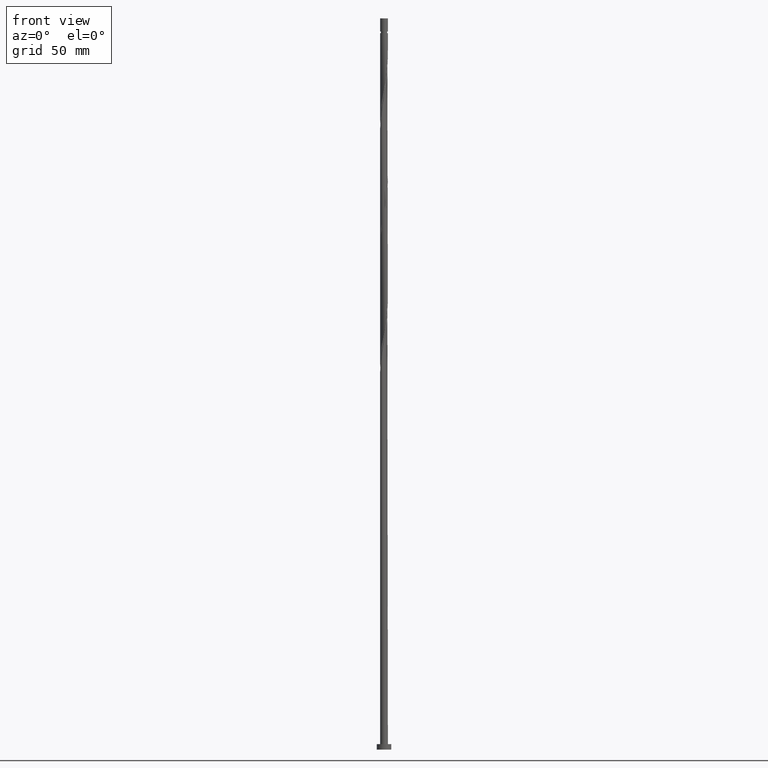
[diagram: clean part render]
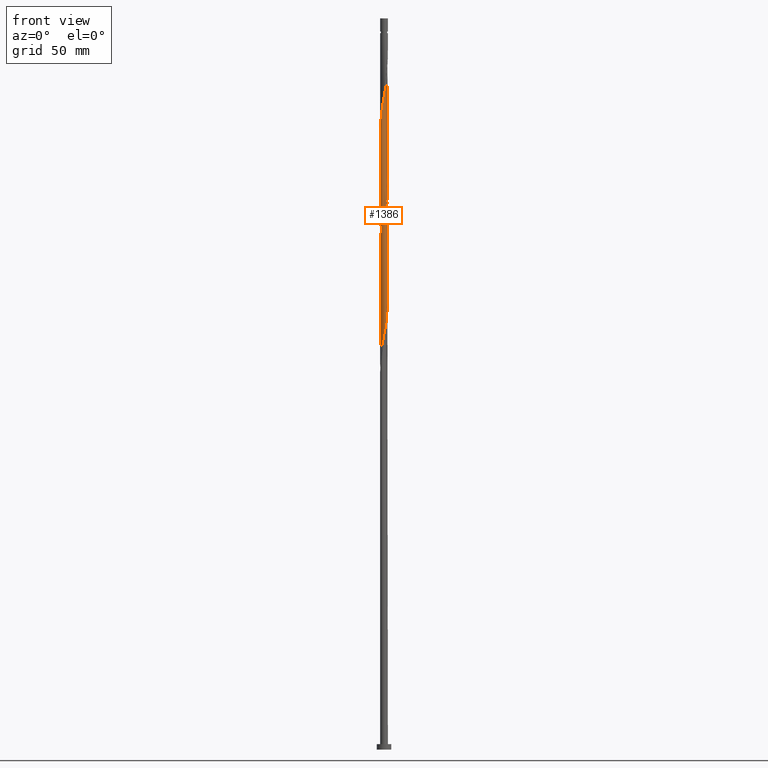
[diagram: same view with one face highlighted and labeled with its STEP entity id]
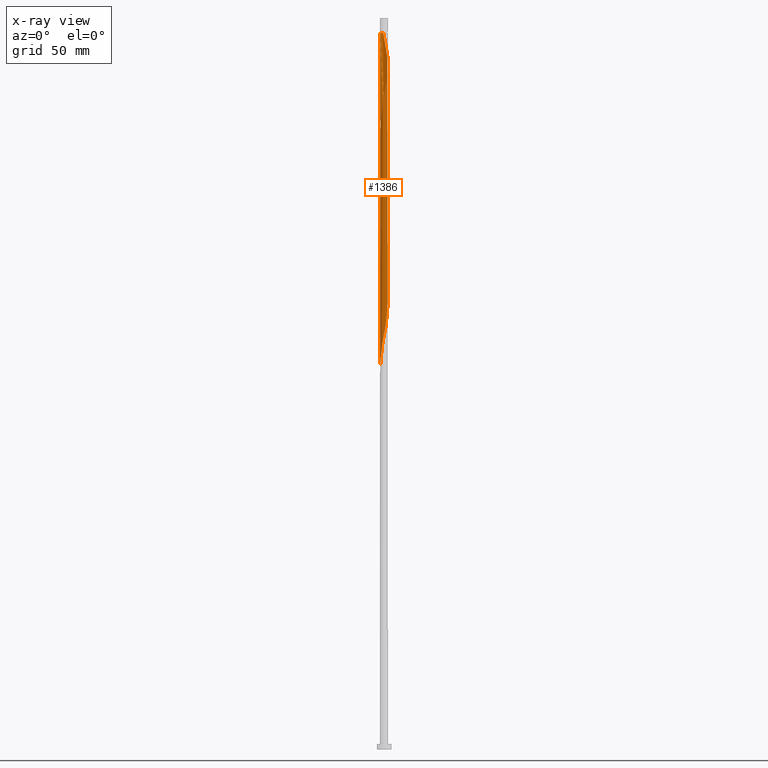
[diagram: x-ray of the same camera — body ghosted, the highlighted face saturated]
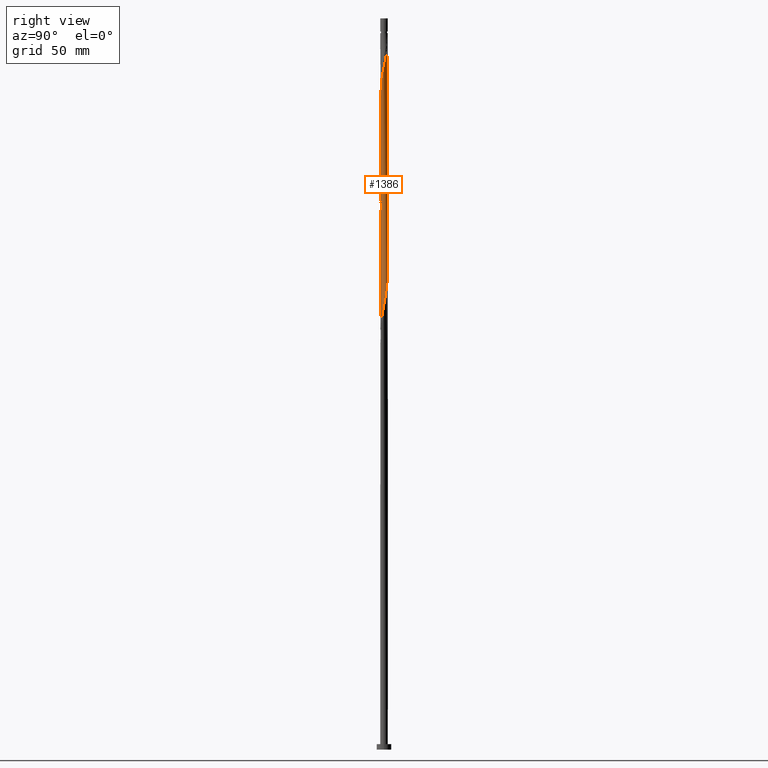
[diagram: same view with one face highlighted and labeled with its STEP entity id]
A machine part, front view. The second image highlights one B-rep face of the part: STEP entity #1386.
The next image is the same camera in x-ray: the body ghosted, the highlighted face saturated — about 0% of this face is hidden behind the body in this view.
A second angle (right view) of the same face is appended — the face is thin or edge-on in the first view.
In plain terms, the highlighted cylindrical surface (bore or boss wall) has radius 2.1 mm, axis along (-0, -0, -1).
Its self-contained STEP definition (entity closure, byte-faithful):
#7 = CARTESIAN_POINT ( 'NONE',  ( -1.427142655681891581, 1.556271400022306572, 268.6604106281170630 ) ) ;
#15 = CARTESIAN_POINT ( 'NONE',  ( 0.2015902074080211659, -2.101922505343942760, 357.5492995170059203 ) ) ;
#18 = CARTESIAN_POINT ( 'NONE',  ( 1.828137739088105951, -1.033398474414312540, 238.6604106281171767 ) ) ;
#26 = LINE ( 'NONE', #1189, #1511 ) ;
#41 = CARTESIAN_POINT ( 'NONE',  ( -2.100000000000002753, 4.932977088819269948E-16, 339.8683007179288325 ) ) ;
#62 = CARTESIAN_POINT ( 'NONE',  ( 2.003044167403931208, 0.6307250299687703343, 376.4381884058950050 ) ) ;
#63 = EDGE_CURVE ( 'NONE', #1246, #1501, #26, .T. ) ;
#64 = CARTESIAN_POINT ( 'NONE',  ( 1.218829837953687489, 1.710103454798506339, 320.8826328503393484 ) ) ;
#79 = ORIENTED_EDGE ( 'NONE', *, *, #200, .F. ) ;
#81 = CARTESIAN_POINT ( 'NONE',  ( 0.6707670855462439796, 2.002195881311807035, 386.4381884058949481 ) ) ;
#96 = CARTESIAN_POINT ( 'NONE',  ( 2.061341895443437711, 0.4578060946337516590, 313.1048550725616337 ) ) ;
#109 = CARTESIAN_POINT ( 'NONE',  ( -0.8366449809367226820, -1.926142563745838254, 289.7715217392283762 ) ) ;
#120 = CARTESIAN_POINT ( 'NONE',  ( 1.719523182710071429, -1.225543493441491494, 237.5492995170060055 ) ) ;
#130 = CARTESIAN_POINT ( 'NONE',  ( 1.398568953795475300, 1.581999276761396400, 253.1048550725615769 ) ) ;
#138 = FACE_OUTER_BOUND ( 'NONE', #1871, .T. ) ;
#141 = CARTESIAN_POINT ( 'NONE',  ( 1.921113390118095010, 0.8763790119024481573, 248.6604106281171482 ) ) ;
#150 = DIRECTION ( 'NONE',  ( -1.000000000000000000, 0.000000000000000000, 0.000000000000000000 ) ) ;
#152 = CARTESIAN_POINT ( 'NONE',  ( 0.2015902074080217488, 2.101922505343939207, 259.7715217392283193 ) ) ;
#164 = CARTESIAN_POINT ( 'NONE',  ( -2.069336039341715949, 0.4201966045504072489, 275.3270772947838054 ) ) ;
#186 = DIRECTION ( 'NONE',  ( -0.000000000000000000, -0.000000000000000000, -1.000000000000000000 ) ) ;
#196 = CARTESIAN_POINT ( 'NONE',  ( -1.828137739088109504, -1.033398474414313650, 345.3270772947838623 ) ) ;
#200 = EDGE_CURVE ( 'NONE', #1219, #1277, #1402, .T. ) ;
#204 = CARTESIAN_POINT ( 'NONE',  ( -0.2398292843463734614, -2.097903416405071386, 355.3270772947836917 ) ) ;
#211 = CARTESIAN_POINT ( 'NONE',  ( 1.573332919195986168, 1.390907446731899810, 380.8826328503394052 ) ) ;
#213 = CARTESIAN_POINT ( 'NONE',  ( -1.936752295466138918, 0.8412534553871342524, 339.7715217392282057 ) ) ;
#221 = CARTESIAN_POINT ( 'NONE',  ( 1.809018200618933481, -1.066514486460194533, 367.5492995170059771 ) ) ;
#230 = CARTESIAN_POINT ( 'NONE',  ( 2.086410881982744936, 0.2385154744329703869, 311.9937439614505479 ) ) ;
#232 = CARTESIAN_POINT ( 'NONE',  ( 2.003044167403927212, -0.6307250299687723327, 307.5492995170061477 ) ) ;
#236 = CARTESIAN_POINT ( 'NONE',  ( 0.4552981849463097475, 2.050049648858438989, 387.5492995170060340 ) ) ;
#245 = ORIENTED_EDGE ( 'NONE', *, *, #1692, .T. ) ;
#249 = CARTESIAN_POINT ( 'NONE',  ( -1.072389146410154259, 1.818982778603428940, 333.1048550725615769 ) ) ;
#252 = CARTESIAN_POINT ( 'NONE',  ( -0.6341992397615467958, -2.014077494656058676, 290.8826328503394052 ) ) ;
#256 = VECTOR ( 'NONE', #186, 1000.000000000000000 ) ;
#266 = CARTESIAN_POINT ( 'NONE',  ( -1.696923011119766622, -1.256649961017934025, 217.5492995170060055 ) ) ;
#271 = CARTESIAN_POINT ( 'NONE',  ( -2.100000000000000089, 0.000000000000000000, 400.0000000000000000 ) ) ;
#276 = CARTESIAN_POINT ( 'NONE',  ( -2.003044167403927212, 0.6307250299687712225, 274.2159661836727764 ) ) ;
#285 = CARTESIAN_POINT ( 'NONE',  ( -2.090407953931884499, 0.2004858751591094557, 276.4381884058949481 ) ) ;
#295 = CARTESIAN_POINT ( 'NONE',  ( 0.6707670855462406490, -2.002195881311804371, 230.8826328503392915 ) ) ;
#304 = CARTESIAN_POINT ( 'NONE',  ( 0.4178947235847844111, 2.057999999999999385, 258.6604106281171767 ) ) ;
#311 = CARTESIAN_POINT ( 'NONE',  ( -1.249765901046026029, -1.687627089312869755, 349.7715217392283193 ) ) ;
#338 = CARTESIAN_POINT ( 'NONE',  ( -2.069336039341719058, -0.4201966045504075264, 341.9937439614504342 ) ) ;
#351 = CARTESIAN_POINT ( 'NONE',  ( 1.072389146410158034, 1.818982778603431161, 384.2159661836727196 ) ) ;
#359 = CARTESIAN_POINT ( 'NONE',  ( -1.573332919195981949, 1.390907446731898256, 336.4381884058948344 ) ) ;
#366 = CARTESIAN_POINT ( 'NONE',  ( 0.01911953846917683469, 2.099912960874507295, 389.7715217392283193 ) ) ;
#368 = CARTESIAN_POINT ( 'NONE',  ( -2.003044167403927212, 0.6307250299687712225, 340.8826328503394052 ) ) ;
#377 =( BOUNDED_CURVE ( )  B_SPLINE_CURVE ( 2, ( #1667, #1382, #390, #1250, #368, #213, #1393, #1811, #359, #1239, #503, #249, #669, #1818, #933, #1230, #1222, #529, #1099, #1829, #823, #1691, #64, #520, #1677, #512, #1524, #1263, #379, #96, #230, #793, #1070 ),
 .UNSPECIFIED., .F., .T. ) 
 B_SPLINE_CURVE_WITH_KNOTS ( ( 3, 2, 2, 2, 2, 2, 2, 2, 2, 2, 2, 2, 2, 2, 2, 2, 3 ),
 ( 0.4295286012773114614, 0.4333333333333333481, 0.4416666666666666519, 0.4500000000000000111, 0.4583333333333333148, 0.4666666666666666741, 0.4749999999999999778, 0.4833333333333333370, 0.4916666666666666408, 0.5000000000000000000, 0.5083333333333333037, 0.5166666666666667185, 0.5250000000000000222, 0.5333333333333333259, 0.5416666666666666297, 0.5500000000000000444, 0.5545286012773114059 ),
 .UNSPECIFIED. ) 
 CURVE ( )  GEOMETRIC_REPRESENTATION_ITEM ( )  RATIONAL_B_SPLINE_CURVE ( ( 0.9066196499552647836, 0.9068171577856775079, 0.9090909090909764512, 0.9041108139712246139, 0.9090909090909764512, 0.9041108139712246139, 0.9090909090909764512, 0.9041108139712246139, 0.9090909090909764512, 0.9041108139712246139, 0.9090909090909764512, 0.9041108139712246139, 0.9090909090909764512, 0.9041108139712246139, 0.9090909090909764512, 0.9041108139712246139, 0.9090909090909764512, 0.9041108139712246139, 0.9090909090909764512, 0.9041108139712246139, 0.9090909090909764512, 0.9041108139712246139, 0.9090909090909764512, 0.9041108139712246139, 0.9090909090909764512, 0.9041108139712246139, 0.9090909090909764512, 0.9041108139712246139, 0.9090909090909764512, 0.9041108139712246139, 0.9090909090909764512, 0.9063845652765236682, 0.9066196499552647836 ) ) 
 REPRESENTATION_ITEM ( '' )  );
#379 = CARTESIAN_POINT ( 'NONE',  ( 1.991227642780766915, 0.6670925532680991310, 314.2159661836727764 ) ) ;
#381 = CARTESIAN_POINT ( 'NONE',  ( 0.2398292843463720181, -2.097903416405068722, 295.3270772947837486 ) ) ;
#390 = CARTESIAN_POINT ( 'NONE',  ( -2.090407953931884499, 0.2004858751591094557, 343.1048550725615769 ) ) ;
#407 = CARTESIAN_POINT ( 'NONE',  ( -1.398568953795474856, -1.581999276761396400, 286.4381884058948344 ) ) ;
#420 = CARTESIAN_POINT ( 'NONE',  ( -0.4552981849463068054, 2.050049648858437212, 263.1048550725616337 ) ) ;
#432 = CARTESIAN_POINT ( 'NONE',  ( -1.719523182710072540, 1.225543493441490606, 270.8826328503394052 ) ) ;
#441 = EDGE_CURVE ( 'NONE', #1501, #1037, #1396, .T. ) ;
#442 = CARTESIAN_POINT ( 'NONE',  ( 0.000000000000000000, 0.000000000000000000, 400.0000000000000000 ) ) ;
#444 = CARTESIAN_POINT ( 'NONE',  ( 1.427142655681890915, -1.556271400022306572, 235.3270772947838054 ) ) ;
#452 = CARTESIAN_POINT ( 'NONE',  ( 2.090407953931884499, -0.2004858751591102606, 243.1048550725616622 ) ) ;
#460 = CARTESIAN_POINT ( 'NONE',  ( 0.8366449809367224599, -1.926142563745842473, 360.8826328503394052 ) ) ;
#461 = CARTESIAN_POINT ( 'NONE',  ( -1.398568953795474856, -1.581999276761396400, 219.7715217392282341 ) ) ;
#487 = CARTESIAN_POINT ( 'NONE',  ( -2.090407953931887608, -0.2004858751591087063, 340.8826328503394620 ) ) ;
#500 = CARTESIAN_POINT ( 'NONE',  ( 1.547745982457622294, -1.419324618889668654, 365.3270772947838054 ) ) ;
#503 = CARTESIAN_POINT ( 'NONE',  ( -1.249765901046022920, 1.687627089312867756, 334.2159661836727764 ) ) ;
#512 = CARTESIAN_POINT ( 'NONE',  ( 1.696923011119767066, 1.256649961017933137, 317.5492995170059771 ) ) ;
#514 = CARTESIAN_POINT ( 'NONE',  ( 0.8715781159781976761, -1.910589329957616656, 298.6604106281172335 ) ) ;
#518 = CARTESIAN_POINT ( 'NONE',  ( 2.090407953931888052, 0.2004858751591075683, 374.2159661836727196 ) ) ;
#520 = CARTESIAN_POINT ( 'NONE',  ( 1.398568953795475300, 1.581999276761396400, 319.7715217392283762 ) ) ;
#522 = CARTESIAN_POINT ( 'NONE',  ( 2.090407953931884499, -0.2004858751591102606, 309.7715217392283193 ) ) ;
#529 = CARTESIAN_POINT ( 'NONE',  ( 0.2015902074080217488, 2.101922505343939207, 326.4381884058948344 ) ) ;
#531 = CARTESIAN_POINT ( 'NONE',  ( 1.249765901046022920, -1.687627089312868200, 300.8826328503394620 ) ) ;
#552 = CARTESIAN_POINT ( 'NONE',  ( -1.218829837953686601, -1.710103454798507228, 287.5492995170059203 ) ) ;
#560 = DIRECTION ( 'NONE',  ( -0.000000000000000000, -0.000000000000000000, -1.000000000000000000 ) ) ;
#564 = CARTESIAN_POINT ( 'NONE',  ( 1.991227642780766915, 0.6670925532680991310, 247.5492995170060908 ) ) ;
#576 = CARTESIAN_POINT ( 'NONE',  ( -1.921113390118095010, -0.8763790119024486014, 281.9937439614504342 ) ) ;
#585 = CARTESIAN_POINT ( 'NONE',  ( -0.01911953846917524569, 2.099912960874503298, 260.8826328503394052 ) ) ;
#600 = CARTESIAN_POINT ( 'NONE',  ( 1.072389146410153593, -1.818982778603429162, 233.1048550725615769 ) ) ;
#608 = CARTESIAN_POINT ( 'NONE',  ( 0.000000000000000000, 0.000000000000000000, 391.9937439614504910 ) ) ;
#610 = CARTESIAN_POINT ( 'NONE',  ( -0.8366449809367226820, -1.926142563745838254, 223.1048550725616337 ) ) ;
#635 = VERTEX_POINT ( 'NONE', #1049 ) ;
#644 = CARTESIAN_POINT ( 'NONE',  ( -1.573332919195985280, -1.390907446731900476, 347.5492995170059771 ) ) ;
#661 = CARTESIAN_POINT ( 'NONE',  ( -2.099999999999964562, 0.000000000000000000, 391.9937439614504910 ) ) ;
#667 = CARTESIAN_POINT ( 'NONE',  ( 1.427142655681894690, 1.556271400022308349, 381.9937439614503774 ) ) ;
#669 = CARTESIAN_POINT ( 'NONE',  ( -0.8715781159781980092, 1.910589329957616878, 331.9937439614505479 ) ) ;
#684 = CARTESIAN_POINT ( 'NONE',  ( 1.427142655681890915, -1.556271400022306572, 301.9937439614504910 ) ) ;
#690 = CARTESIAN_POINT ( 'NONE',  ( -0.2015902074080199724, 2.101922505343943204, 390.8826328503392347 ) ) ;
#704 = CARTESIAN_POINT ( 'NONE',  ( 1.072389146410153593, -1.818982778603429162, 299.7715217392282625 ) ) ;
#714 = CARTESIAN_POINT ( 'NONE',  ( -1.547745982457620961, -1.419324618889665768, 218.6604106281172051 ) ) ;
#723 = CARTESIAN_POINT ( 'NONE',  ( -1.573332919195981949, 1.390907446731898256, 269.7715217392282625 ) ) ;
#730 = CARTESIAN_POINT ( 'NONE',  ( 2.003044167403927212, -0.6307250299687723327, 240.8826328503394052 ) ) ;
#738 = CYLINDRICAL_SURFACE ( 'NONE', #1160, 2.100000000000000089 ) ;
#740 = CARTESIAN_POINT ( 'NONE',  ( 0.2398292843463720181, -2.097903416405068722, 228.6604106281171482 ) ) ;
#750 = CARTESIAN_POINT ( 'NONE',  ( 1.547745982457620961, 1.419324618889665768, 251.9937439614505195 ) ) ;
#771 = LINE ( 'NONE', #882, #256 ) ;
#793 = CARTESIAN_POINT ( 'NONE',  ( 2.099999999999999645, 0.1196448486375067122, 311.3914451810231867 ) ) ;
#795 = CARTESIAN_POINT ( 'NONE',  ( -1.547745982457620961, -1.419324618889665768, 285.3270772947839760 ) ) ;
#799 = CARTESIAN_POINT ( 'NONE',  ( 1.936752295466143803, 0.8412534553871336973, 377.5492995170060340 ) ) ;
#807 = CARTESIAN_POINT ( 'NONE',  ( 0.8715781159782003407, 1.910589329957619986, 385.3270772947838054 ) ) ;
#810 = CARTESIAN_POINT ( 'NONE',  ( 1.936752295466138474, -0.8412534553871350296, 306.4381884058949481 ) ) ;
#823 = CARTESIAN_POINT ( 'NONE',  ( 0.8366449809367229040, 1.926142563745838254, 323.1048550725618043 ) ) ;
#840 = CARTESIAN_POINT ( 'NONE',  ( -2.061341895443437711, -0.4578060946337523252, 279.7715217392283193 ) ) ;
#850 = CARTESIAN_POINT ( 'NONE',  ( -1.072389146410154259, 1.818982778603428940, 266.4381884058950050 ) ) ;
#860 = CARTESIAN_POINT ( 'NONE',  ( -1.936752295466138918, 0.8412534553871342524, 273.1048550725615769 ) ) ;
#868 = CARTESIAN_POINT ( 'NONE',  ( -2.086410881982744936, -0.2385154744329706644, 278.6604106281171767 ) ) ;
#877 = CARTESIAN_POINT ( 'NONE',  ( -0.4178947235847841890, -2.057999999999999385, 225.3270772947838623 ) ) ;
#882 = CARTESIAN_POINT ( 'NONE',  ( -2.100000000000000089, 0.000000000000000000, 400.0000000000000000 ) ) ;
#887 = DIRECTION ( 'NONE',  ( -0.000000000000000000, -0.000000000000000000, -1.000000000000000000 ) ) ;
#899 = CARTESIAN_POINT ( 'NONE',  ( -2.003044167403931208, -0.6307250299687712225, 343.1048550725616337 ) ) ;
#907 = CARTESIAN_POINT ( 'NONE',  ( -0.6707670855462438686, -2.002195881311807479, 353.1048550725616906 ) ) ;
#932 = CARTESIAN_POINT ( 'NONE',  ( 1.719523182710076314, 1.225543493441491716, 379.7715217392282625 ) ) ;
#933 = CARTESIAN_POINT ( 'NONE',  ( -0.4552981849463068054, 2.050049648858437212, 329.7715217392284330 ) ) ;
#939 = CARTESIAN_POINT ( 'NONE',  ( -0.4178947235848213815, 2.058000000000551832, 391.9937439614504910 ) ) ;
#943 = CARTESIAN_POINT ( 'NONE',  ( -0.2015902074080227757, -2.101922505343939207, 293.1048550725615769 ) ) ;
#953 = VECTOR ( 'NONE', #560, 1000.000000000000000 ) ;
#954 = ORIENTED_EDGE ( 'NONE', *, *, #1748, .F. ) ;
#978 = CARTESIAN_POINT ( 'NONE',  ( -2.061341895443437711, -0.4578060946337523252, 213.1048550725616053 ) ) ;
#990 = CARTESIAN_POINT ( 'NONE',  ( -0.2398292843463723512, 2.097903416405067833, 261.9937439614504910 ) ) ;
#998 = CARTESIAN_POINT ( 'NONE',  ( 1.249765901046022920, -1.687627089312868200, 234.2159661836727480 ) ) ;
#1000 = AXIS2_PLACEMENT_3D ( 'NONE', #608, #887, #1477 ) ;
#1009 = CARTESIAN_POINT ( 'NONE',  ( 0.01911953846917470792, -2.099912960874503298, 227.5492995170060624 ) ) ;
#1031 = CARTESIAN_POINT ( 'NONE',  ( -2.100000000000000089, -0.1196448486375046028, 211.3914451810232720 ) ) ;
#1037 = VERTEX_POINT ( 'NONE', #1088 ) ;
#1041 = CARTESIAN_POINT ( 'NONE',  ( -2.086410881982744936, -0.2385154744329706644, 211.9937439614505479 ) ) ;
#1049 = CARTESIAN_POINT ( 'NONE',  ( -0.4178947235848213815, 2.058000000000551832, 391.9937439614504910 ) ) ;
#1053 = CARTESIAN_POINT ( 'NONE',  ( -0.8715781159782001186, -1.910589329957619986, 351.9937439614505479 ) ) ;
#1057 = CIRCLE ( 'NONE', #1000, 2.099999999999964562 ) ;
#1063 = CARTESIAN_POINT ( 'NONE',  ( 2.100000000000000089, 2.571758278209441957E-16, 391.9937439614504910 ) ) ;
#1070 = CARTESIAN_POINT ( 'NONE',  ( 2.100000000000000089, -7.474207710332291177E-17, 310.7858538716386647 ) ) ;
#1072 = CARTESIAN_POINT ( 'NONE',  ( -1.696923011119766622, -1.256649961017934025, 284.2159661836727764 ) ) ;
#1073 = ORIENTED_EDGE ( 'NONE', *, *, #63, .F. ) ;
#1078 = CARTESIAN_POINT ( 'NONE',  ( 1.828137739088109504, 1.033398474414313428, 378.6604106281171767 ) ) ;
#1088 = CARTESIAN_POINT ( 'NONE',  ( -2.100000000000000089, -8.296370558468843318E-16, 210.7858538716386363 ) ) ;
#1091 = CARTESIAN_POINT ( 'NONE',  ( 0.4552981849463060282, -2.050049648858437212, 296.4381884058949481 ) ) ;
#1099 = CARTESIAN_POINT ( 'NONE',  ( 0.4178947235847844111, 2.057999999999999385, 325.3270772947838623 ) ) ;
#1103 = CARTESIAN_POINT ( 'NONE',  ( 0.01911953846917470792, -2.099912960874503298, 294.2159661836726627 ) ) ;
#1126 = CARTESIAN_POINT ( 'NONE',  ( -1.921113390118095010, -0.8763790119024486014, 215.3270772947838054 ) ) ;
#1138 = CARTESIAN_POINT ( 'NONE',  ( -0.8715781159781980092, 1.910589329957616878, 265.3270772947838054 ) ) ;
#1145 = CARTESIAN_POINT ( 'NONE',  ( 1.936752295466138474, -0.8412534553871350296, 239.7715217392282625 ) ) ;
#1156 = CARTESIAN_POINT ( 'NONE',  ( 2.100000000000000089, -7.474207710332291177E-17, 310.7858538716386647 ) ) ;
#1158 = CARTESIAN_POINT ( 'NONE',  ( 2.061341895443437711, 0.4578060946337516590, 246.4381884058949481 ) ) ;
#1160 = AXIS2_PLACEMENT_3D ( 'NONE', #442, #1555, #150 ) ;
#1168 = CARTESIAN_POINT ( 'NONE',  ( 0.4178947235847839670, -2.058000000000002938, 358.6604106281171198 ) ) ;
#1169 = CARTESIAN_POINT ( 'NONE',  ( -1.039090722111898124, -1.838207632835617611, 221.9937439614504342 ) ) ;
#1189 = CARTESIAN_POINT ( 'NONE',  ( 2.100000000000000089, 2.571758278209441957E-16, 400.0000000000000000 ) ) ;
#1197 = CARTESIAN_POINT ( 'NONE',  ( -2.100000000000004086, -0.1004723985021682420, 340.3768492434929840 ) ) ;
#1203 = CARTESIAN_POINT ( 'NONE',  ( -1.072389146410157146, -1.818982778603431605, 350.8826328503393484 ) ) ;
#1219 = VERTEX_POINT ( 'NONE', #661 ) ;
#1222 = CARTESIAN_POINT ( 'NONE',  ( -0.01911953846917524569, 2.099912960874503298, 327.5492995170061477 ) ) ;
#1224 = CARTESIAN_POINT ( 'NONE',  ( 2.100000000000000089, -7.474207710332291177E-17, 310.7858538716386647 ) ) ;
#1230 = CARTESIAN_POINT ( 'NONE',  ( -0.2398292843463723512, 2.097903416405067833, 328.6604106281171767 ) ) ;
#1236 = CARTESIAN_POINT ( 'NONE',  ( 1.991227642780769136, -0.6670925532681033499, 369.7715217392282057 ) ) ;
#1239 = CARTESIAN_POINT ( 'NONE',  ( -1.427142655681891581, 1.556271400022306572, 335.3270772947838054 ) ) ;
#1241 = CARTESIAN_POINT ( 'NONE',  ( 0.6707670855462406490, -2.002195881311804371, 297.5492995170060340 ) ) ;
#1244 = EDGE_CURVE ( 'NONE', #1277, #1501, #377, .T. ) ;
#1246 = VERTEX_POINT ( 'NONE', #1063 ) ;
#1248 = CARTESIAN_POINT ( 'NONE',  ( 2.069336039341719058, 0.4201966045504071934, 375.3270772947838054 ) ) ;
#1250 = CARTESIAN_POINT ( 'NONE',  ( -2.069336039341715949, 0.4201966045504072489, 341.9937439614504342 ) ) ;
#1263 = CARTESIAN_POINT ( 'NONE',  ( 1.921113390118095010, 0.8763790119024481573, 315.3270772947837486 ) ) ;
#1275 = CARTESIAN_POINT ( 'NONE',  ( -0.6707670855462412041, 2.002195881311803927, 264.2159661836727196 ) ) ;
#1277 = VERTEX_POINT ( 'NONE', #1531 ) ;
#1286 = CARTESIAN_POINT ( 'NONE',  ( -2.100000000000002753, 4.932977088819269948E-16, 339.8683007179288893 ) ) ;
#1290 = CARTESIAN_POINT ( 'NONE',  ( 1.809018200618931260, 1.066514486460190536, 249.7715217392282909 ) ) ;
#1297 = CARTESIAN_POINT ( 'NONE',  ( 1.039090722111898346, 1.838207632835617611, 255.3270772947838338 ) ) ;
#1301 = VERTEX_POINT ( 'NONE', #1286 ) ;
#1308 = CARTESIAN_POINT ( 'NONE',  ( 1.696923011119767066, 1.256649961017933137, 250.8826328503394052 ) ) ;
#1318 = CARTESIAN_POINT ( 'NONE',  ( -0.01911953846917656755, -2.099912960874507295, 356.4381884058949481 ) ) ;
#1320 = CARTESIAN_POINT ( 'NONE',  ( 2.086410881982744936, 0.2385154744329703869, 245.3270772947838623 ) ) ;
#1351 = CARTESIAN_POINT ( 'NONE',  ( -1.427142655681894468, -1.556271400022308793, 348.6604106281171198 ) ) ;
#1364 = CARTESIAN_POINT ( 'NONE',  ( 2.111479868522056158, -0.01922485423219033943, 373.1048550725615769 ) ) ;
#1372 = CARTESIAN_POINT ( 'NONE',  ( 0.2398292843463737667, 2.097903416405071386, 388.6604106281171198 ) ) ;
#1382 = CARTESIAN_POINT ( 'NONE',  ( -2.099999999999999645, 0.1004723985021771931, 343.6106386794078276 ) ) ;
#1385 = CARTESIAN_POINT ( 'NONE',  ( 1.573332919195981949, -1.390907446731898922, 303.1048550725615769 ) ) ;
#1386 = ADVANCED_FACE ( 'NONE', ( #138 ), #738, .T. ) ;
#1391 = CARTESIAN_POINT ( 'NONE',  ( 2.061341895443440375, -0.4578060946337556003, 370.8826328503393484 ) ) ;
#1393 = CARTESIAN_POINT ( 'NONE',  ( -1.828137739088105951, 1.033398474414312540, 338.6604106281171767 ) ) ;
#1395 = CARTESIAN_POINT ( 'NONE',  ( 2.069336039341715949, -0.4201966045504076375, 308.6604106281171198 ) ) ;
#1396 =( BOUNDED_CURVE ( )  B_SPLINE_CURVE ( 2, ( #1224, #1526, #522, #1395, #232, #810, #1813, #1694, #1385, #684, #531, #704, #514, #1241, #1091, #381, #1103, #943, #1545, #252, #109, #1855, #552, #407, #795, #1072, #1580, #576, #1752, #840, #868, #1558, #285, #164, #276, #860, #1571, #432, #723, #7, #1882, #850, #1138, #1275, #420, #990, #585, #152, #304, #1440, #1429, #1297, #1892, #130, #750, #1308, #1290, #141, #564, #1158, #1320, #1419, #452, #1730, #730, #1145, #18, #120, #1740, #444, #998, #600, #1589, #295, #1448, #740, #1009, #1596, #877, #1458, #610, #1169, #1760, #461, #714, #266, #1868, #1126, #1719, #978, #1041, #1031, #1778 ),
 .UNSPECIFIED., .F., .T. ) 
 B_SPLINE_CURVE_WITH_KNOTS ( ( 3, 2, 2, 2, 2, 2, 2, 2, 2, 2, 2, 2, 2, 2, 2, 2, 2, 2, 2, 2, 2, 2, 2, 2, 2, 2, 2, 2, 2, 2, 2, 2, 2, 2, 2, 2, 2, 2, 2, 2, 2, 2, 2, 2, 2, 2, 3 ),
 ( 0.5545286012773114059, 0.5583333333333333481, 0.5666666666666666519, 0.5749999999999999556, 0.5833333333333333703, 0.5916666666666666741, 0.5999999999999999778, 0.6083333333333332815, 0.6166666666666666963, 0.6250000000000000000, 0.6333333333333333037, 0.6416666666666667185, 0.6500000000000000222, 0.6583333333333333259, 0.6666666666666666297, 0.6750000000000000444, 0.6833333333333333481, 0.6916666666666666519, 0.6999999999999999556, 0.7083333333333333703, 0.7166666666666666741, 0.7249999999999999778, 0.7333333333333332815, 0.7416666666666666963, 0.7500000000000000000, 0.7583333333333333037, 0.7666666666666667185, 0.7750000000000000222, 0.7833333333333333259, 0.7916666666666666297, 0.8000000000000000444, 0.8083333333333333481, 0.8166666666666666519, 0.8249999999999999556, 0.8333333333333333703, 0.8416666666666666741, 0.8499999999999999778, 0.8583333333333332815, 0.8666666666666666963, 0.8750000000000000000, 0.8833333333333333037, 0.8916666666666667185, 0.9000000000000000222, 0.9083333333333333259, 0.9166666666666666297, 0.9250000000000000444, 0.9295286012773115170 ),
 .UNSPECIFIED. ) 
 CURVE ( )  GEOMETRIC_REPRESENTATION_ITEM ( )  RATIONAL_B_SPLINE_CURVE ( ( 0.9066196499552647836, 0.9068171577856773968, 0.9090909090909764512, 0.9041108139712246139, 0.9090909090909764512, 0.9041108139712246139, 0.9090909090909764512, 0.9041108139712246139, 0.9090909090909764512, 0.9041108139712246139, 0.9090909090909764512, 0.9041108139712246139, 0.9090909090909764512, 0.9041108139712246139, 0.9090909090909764512, 0.9041108139712246139, 0.9090909090909764512, 0.9041108139712246139, 0.9090909090909764512, 0.9041108139712246139, 0.9090909090909764512, 0.9041108139712246139, 0.9090909090909764512, 0.9041108139712246139, 0.9090909090909764512, 0.9041108139712246139, 0.9090909090909764512, 0.9041108139712246139, 0.9090909090909764512, 0.9041108139712246139, 0.9090909090909764512, 0.9041108139712246139, 0.9090909090909764512, 0.9041108139712246139, 0.9090909090909764512, 0.9041108139712246139, 0.9090909090909764512, 0.9041108139712246139, 0.9090909090909764512, 0.9041108139712246139, 0.9090909090909764512, 0.9041108139712246139, 0.9090909090909764512, 0.9041108139712246139, 0.9090909090909764512, 0.9041108139712246139, 0.9090909090909764512, 0.9041108139712246139, 0.9090909090909764512, 0.9041108139712246139, 0.9090909090909764512, 0.9041108139712246139, 0.9090909090909764512, 0.9041108139712246139, 0.9090909090909764512, 0.9041108139712246139, 0.9090909090909764512, 0.9041108139712246139, 0.9090909090909764512, 0.9041108139712246139, 0.9090909090909764512, 0.9041108139712246139, 0.9090909090909764512, 0.9041108139712246139, 0.9090909090909764512, 0.9041108139712246139, 0.9090909090909764512, 0.9041108139712246139, 0.9090909090909764512, 0.9041108139712246139, 0.9090909090909764512, 0.9041108139712246139, 0.9090909090909764512, 0.9041108139712246139, 0.9090909090909764512, 0.9041108139712246139, 0.9090909090909764512, 0.9041108139712246139, 0.9090909090909764512, 0.9041108139712246139, 0.9090909090909764512, 0.9041108139712246139, 0.9090909090909764512, 0.9041108139712246139, 0.9090909090909764512, 0.9041108139712246139, 0.9090909090909764512, 0.9041108139712246139, 0.9090909090909764512, 0.9041108139712246139, 0.9090909090909764512, 0.9063845652765235572, 0.9066196499552647836 ) ) 
 REPRESENTATION_ITEM ( '' )  );
#1402 = LINE ( 'NONE', #271, #953 ) ;
#1410 = ORIENTED_EDGE ( 'NONE', *, *, #1735, .T. ) ;
#1419 = CARTESIAN_POINT ( 'NONE',  ( 2.111479868522051717, 0.01922485423218720305, 244.2159661836726912 ) ) ;
#1429 = CARTESIAN_POINT ( 'NONE',  ( 0.8366449809367229040, 1.926142563745838254, 256.4381884058950050 ) ) ;
#1440 = CARTESIAN_POINT ( 'NONE',  ( 0.6341992397615476840, 2.014077494656058676, 257.5492995170059203 ) ) ;
#1448 = CARTESIAN_POINT ( 'NONE',  ( 0.4552981849463060282, -2.050049648858437212, 229.7715217392283193 ) ) ;
#1458 = CARTESIAN_POINT ( 'NONE',  ( -0.6341992397615467958, -2.014077494656058676, 224.2159661836726912 ) ) ;
#1467 = CARTESIAN_POINT ( 'NONE',  ( 1.218829837953687489, -1.710103454798511224, 363.1048550725615769 ) ) ;
#1477 = DIRECTION ( 'NONE',  ( -1.000000000000000000, 0.000000000000000000, 0.000000000000000000 ) ) ;
#1489 = CARTESIAN_POINT ( 'NONE',  ( -1.936752295466142471, -0.8412534553871348075, 344.2159661836727764 ) ) ;
#1496 = CARTESIAN_POINT ( 'NONE',  ( -0.4552981849463086372, -2.050049648858438989, 354.2159661836725491 ) ) ;
#1501 = VERTEX_POINT ( 'NONE', #1156 ) ;
#1504 = CARTESIAN_POINT ( 'NONE',  ( 1.696923011119768177, -1.256649961017937134, 366.4381884058948344 ) ) ;
#1511 = VECTOR ( 'NONE', #1762, 1000.000000000000000 ) ;
#1512 = CARTESIAN_POINT ( 'NONE',  ( 2.086410881982747600, -0.2385154744329719412, 371.9937439614504342 ) ) ;
#1524 = CARTESIAN_POINT ( 'NONE',  ( 1.809018200618931260, 1.066514486460190536, 316.4381884058951186 ) ) ;
#1526 = CARTESIAN_POINT ( 'NONE',  ( 2.100000000000000089, -0.1004723985021760552, 310.2773053460746837 ) ) ;
#1531 = CARTESIAN_POINT ( 'NONE',  ( -2.100000000000000089, 5.306687474335926354E-16, 344.1191872049719223 ) ) ;
#1545 = CARTESIAN_POINT ( 'NONE',  ( -0.4178947235847841890, -2.057999999999999385, 291.9937439614505479 ) ) ;
#1555 = DIRECTION ( 'NONE',  ( -0.000000000000000000, -0.000000000000000000, -1.000000000000000000 ) ) ;
#1558 = CARTESIAN_POINT ( 'NONE',  ( -2.111479868522051717, -0.01922485423218847633, 277.5492995170059771 ) ) ;
#1564 = ORIENTED_EDGE ( 'NONE', *, *, #441, .F. ) ;
#1571 = CARTESIAN_POINT ( 'NONE',  ( -1.828137739088105951, 1.033398474414312540, 271.9937439614505479 ) ) ;
#1580 = CARTESIAN_POINT ( 'NONE',  ( -1.809018200618931038, -1.066514486460190758, 283.1048550725616906 ) ) ;
#1589 = CARTESIAN_POINT ( 'NONE',  ( 0.8715781159781976761, -1.910589329957616656, 231.9937439614504910 ) ) ;
#1596 = CARTESIAN_POINT ( 'NONE',  ( -0.2015902074080227757, -2.101922505343939207, 226.4381884058948913 ) ) ;
#1604 = CARTESIAN_POINT ( 'NONE',  ( 1.039090722111898568, -1.838207632835620942, 361.9937439614504342 ) ) ;
#1640 = CARTESIAN_POINT ( 'NONE',  ( -1.719523182710075870, -1.225543493441491938, 346.4381884058948913 ) ) ;
#1656 = CARTESIAN_POINT ( 'NONE',  ( 1.398568953795476411, -1.581999276761400397, 364.2159661836726627 ) ) ;
#1666 = CARTESIAN_POINT ( 'NONE',  ( 1.921113390118097897, -0.8763790119024510439, 368.6604106281171198 ) ) ;
#1667 = CARTESIAN_POINT ( 'NONE',  ( -2.100000000000000089, 5.306687474335926354E-16, 344.1191872049719223 ) ) ;
#1677 = CARTESIAN_POINT ( 'NONE',  ( 1.547745982457620961, 1.419324618889665768, 318.6604106281171767 ) ) ;
#1688 = CARTESIAN_POINT ( 'NONE',  ( 1.249765901046026251, 1.687627089312869755, 383.1048550725615769 ) ) ;
#1691 = CARTESIAN_POINT ( 'NONE',  ( 1.039090722111898346, 1.838207632835617611, 321.9937439614504910 ) ) ;
#1692 = EDGE_CURVE ( 'NONE', #1301, #1037, #771, .T. ) ;
#1694 = CARTESIAN_POINT ( 'NONE',  ( 1.719523182710071429, -1.225543493441491494, 304.2159661836727196 ) ) ;
#1719 = CARTESIAN_POINT ( 'NONE',  ( -1.991227642780766249, -0.6670925532681002412, 214.2159661836727764 ) ) ;
#1730 = CARTESIAN_POINT ( 'NONE',  ( 2.069336039341715949, -0.4201966045504076375, 241.9937439614505195 ) ) ;
#1731 = ORIENTED_EDGE ( 'NONE', *, *, #1244, .F. ) ;
#1734 = ORIENTED_EDGE ( 'NONE', *, *, #63, .T. ) ;
#1735 = EDGE_CURVE ( 'NONE', #1219, #635, #1057, .T. ) ;
#1740 = CARTESIAN_POINT ( 'NONE',  ( 1.573332919195981949, -1.390907446731898922, 236.4381884058949765 ) ) ;
#1748 = EDGE_CURVE ( 'NONE', #1301, #635, #1815, .T. ) ;
#1752 = CARTESIAN_POINT ( 'NONE',  ( -1.991227642780766249, -0.6670925532681002412, 280.8826328503393484 ) ) ;
#1759 = CARTESIAN_POINT ( 'NONE',  ( 0.6341992397615457966, -2.014077494656063561, 359.7715217392282057 ) ) ;
#1760 = CARTESIAN_POINT ( 'NONE',  ( -1.218829837953686601, -1.710103454798507228, 220.8826328503394052 ) ) ;
#1762 = DIRECTION ( 'NONE',  ( -0.000000000000000000, -0.000000000000000000, -1.000000000000000000 ) ) ;
#1778 = CARTESIAN_POINT ( 'NONE',  ( -2.100000000000000089, -8.296370558468843318E-16, 210.7858538716386363 ) ) ;
#1811 = CARTESIAN_POINT ( 'NONE',  ( -1.719523182710072540, 1.225543493441490606, 337.5492995170059771 ) ) ;
#1813 = CARTESIAN_POINT ( 'NONE',  ( 1.828137739088105951, -1.033398474414312540, 305.3270772947838623 ) ) ;
#1815 =( BOUNDED_CURVE ( )  B_SPLINE_CURVE ( 2, ( #41, #1197, #487, #338, #899, #1489, #196, #1640, #644, #1351, #311, #1203, #1053, #907, #1496, #204, #1318, #15, #1168, #1759, #460, #1604, #1467, #1656, #500, #1504, #221, #1666, #1236, #1391, #1512, #1364, #518, #1248, #62, #799, #1078, #932, #211, #667, #1688, #351, #807, #81, #236, #1372, #366, #690, #939 ),
 .UNSPECIFIED., .F., .T. ) 
 B_SPLINE_CURVE_WITH_KNOTS ( ( 3, 2, 2, 2, 2, 2, 2, 2, 2, 2, 2, 2, 2, 2, 2, 2, 2, 2, 2, 2, 2, 2, 2, 2, 3 ),
 ( 0.5545286012773111839, 0.5583333333333333481, 0.5666666666666666519, 0.5749999999999999556, 0.5833333333333332593, 0.5916666666666666741, 0.5999999999999999778, 0.6083333333333333925, 0.6166666666666666963, 0.6250000000000000000, 0.6333333333333333037, 0.6416666666666666075, 0.6500000000000000222, 0.6583333333333333259, 0.6666666666666667407, 0.6750000000000000444, 0.6833333333333333481, 0.6916666666666666519, 0.6999999999999999556, 0.7083333333333332593, 0.7166666666666666741, 0.7249999999999999778, 0.7333333333333333925, 0.7416666666666666963, 0.7500000000000000000 ),
 .UNSPECIFIED. ) 
 CURVE ( )  GEOMETRIC_REPRESENTATION_ITEM ( )  RATIONAL_B_SPLINE_CURVE ( ( 0.9066196499552723331, 0.9068171577856849463, 0.9090909090909841117, 0.9041108139712322744, 0.9090909090909841117, 0.9041108139712322744, 0.9090909090909841117, 0.9041108139712322744, 0.9090909090909841117, 0.9041108139712322744, 0.9090909090909841117, 0.9041108139712322744, 0.9090909090909841117, 0.9041108139712322744, 0.9090909090909841117, 0.9041108139712322744, 0.9090909090909841117, 0.9041108139712322744, 0.9090909090909841117, 0.9041108139712322744, 0.9090909090909841117, 0.9041108139712322744, 0.9090909090909841117, 0.9041108139712322744, 0.9090909090909841117, 0.9041108139712322744, 0.9090909090909841117, 0.9041108139712322744, 0.9090909090909841117, 0.9041108139712322744, 0.9090909090909841117, 0.9041108139712322744, 0.9090909090909841117, 0.9041108139712322744, 0.9090909090909841117, 0.9041108139712322744, 0.9090909090909841117, 0.9041108139712322744, 0.9090909090909841117, 0.9041108139712322744, 0.9090909090909841117, 0.9041108139712322744, 0.9090909090909841117, 0.9041108139712322744, 0.9090909090909841117, 0.9041108139712322744, 0.9090909090909841117, 0.9041108139712322744, 0.9090909090909841117 ) ) 
 REPRESENTATION_ITEM ( '' )  );
#1818 = CARTESIAN_POINT ( 'NONE',  ( -0.6707670855462412041, 2.002195881311803927, 330.8826328503393484 ) ) ;
#1829 = CARTESIAN_POINT ( 'NONE',  ( 0.6341992397615476840, 2.014077494656058676, 324.2159661836727196 ) ) ;
#1855 = CARTESIAN_POINT ( 'NONE',  ( -1.039090722111898124, -1.838207632835617611, 288.6604106281171767 ) ) ;
#1868 = CARTESIAN_POINT ( 'NONE',  ( -1.809018200618931038, -1.066514486460190758, 216.4381884058949481 ) ) ;
#1871 = EDGE_LOOP ( 'NONE', ( #79, #1410, #954, #245, #1564, #1073, #1734, #1731 ) ) ;
#1882 = CARTESIAN_POINT ( 'NONE',  ( -1.249765901046022920, 1.687627089312867756, 267.5492995170060908 ) ) ;
#1892 = CARTESIAN_POINT ( 'NONE',  ( 1.218829837953687489, 1.710103454798506339, 254.2159661836726912 ) ) ;